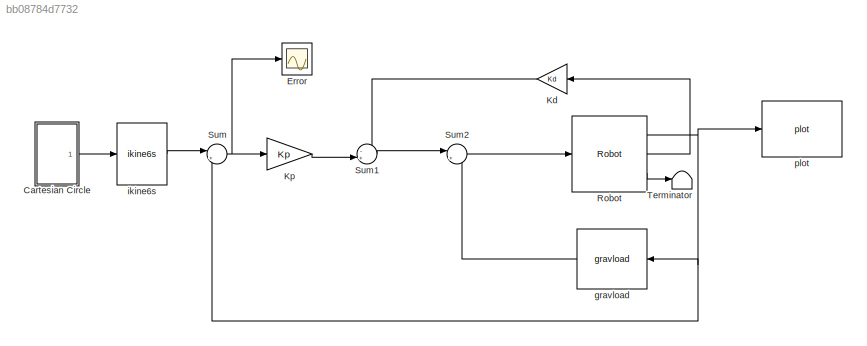
MODEL slx_bb08784d7732
KIND model
CONFIG AbsTol = auto
CONFIG EnableMultiTasking = off
CONFIG FixedStep = auto
CONFIG MaxStep = auto
CONFIG MinStep = auto
CONFIG RelTol = 1e-3
CONFIG SampleTimeConstraint = Unconstrained
CONFIG Solver = VariableStepAuto
CONFIG SolverName = VariableStepAuto
CONFIG StartTime = 0.0
CONFIG StopTime = 5
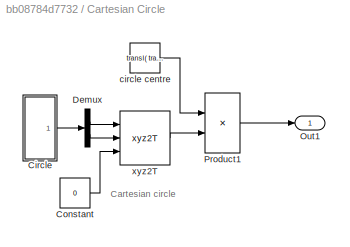
BLOCK [SubSystem] Cartesian Circle
  Ports = [0, 1]
  RequestExecContextInheritance = off
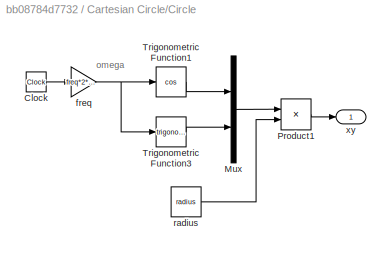
BLOCK [SubSystem] Cartesian Circle/Circle
  Ports = [0, 1]
  RequestExecContextInheritance = off
BLOCK [Clock] Cartesian Circle/Circle/Clock
BLOCK [Mux] Cartesian Circle/Circle/Mux
  DisplayOption = bar
  Inputs = 2
  Ports = [2, 1]
BLOCK [Product] Cartesian Circle/Circle/Product1
  Multiplication = Matrix(*)
  Ports = [2, 1]
  RndMeth = Zero
BLOCK [Trigonometry] Cartesian Circle/Circle/Trigonometric Function1
  Operator = cos
  Ports = [1, 1]
BLOCK [Trigonometry] Cartesian Circle/Circle/Trigonometric Function3
  Ports = [1, 1]
BLOCK [Gain] Cartesian Circle/Circle/freq
  Gain = freq*2*pi
BLOCK [Constant] Cartesian Circle/Circle/radius
  Value = radius
BLOCK [Outport] Cartesian Circle/Circle/xy
BLOCK [Constant] Cartesian Circle/Constant
  Value = 0
BLOCK [Demux] Cartesian Circle/Demux
  Outputs = 2
  Ports = [1, 2]
BLOCK [Outport] Cartesian Circle/Out1
BLOCK [Product] Cartesian Circle/Product1
  InputSameDT = on
  Multiplication = Matrix(*)
  OutDataTypeStr = Inherit: Same as first input
  Ports = [2, 1]
  RndMeth = Zero
  SaturateOnIntegerOverflow = on
BLOCK [Constant] Cartesian Circle/circle centre
  Value = transl( transl(p560.fkine(qn)) )
BLOCK [Reference] Cartesian Circle/xyz2T  REF=roblocks/Toolbox/xyz2T  (lib defined in mdl_2a292b13c81b, mdl_69400f8cfe22, +12 more)
  Ports = [3, 1]
  SourceBlock = roblocks/Toolbox/xyz2T
BLOCK [Scope] Error
  Floating = off
  NumInputPorts = 1
  Ports = [1]
  ScopeSpecificationString = Simulink.scopes.TimeScopeBlockCfg('CurrentConfiguration', extmgr.ConfigurationSet(extmgr.Configuration('Core','General UI',true),extmgr.Configuration('Core','Source UI',true),extmgr.Configuration('Sources','WiredSimulink',true),extmgr.Configuration('Visuals','Time Domain',true,'SerializedDisplays',{struct('MinYLimReal','-4.28136','MaxYLimReal','2.76927','YLabelReal','','MinYLimMag','0.00000','MaxY...<+1413ch>
BLOCK [Gain] Kd
  Gain = Kd
BLOCK [Gain] Kp
  Gain = Kp
BLOCK [Reference] Robot  REF=roblocks/Arm/Robot  (lib defined in mdl_2a292b13c81b, mdl_69400f8cfe22, +12 more)
  Ports = [1, 3]
  SourceBlock = roblocks/Arm/Robot
BLOCK [Sum] Sum
  Inputs = |+-
  Ports = [2, 1]
BLOCK [Sum] Sum1
  Inputs = -+|
  Ports = [2, 1]
BLOCK [Sum] Sum2
  Inputs = |++
  Ports = [2, 1]
BLOCK [Terminator] Terminator
BLOCK [Reference] gravload  REF=roblocks/Arm/gravload  (lib defined in mdl_2a292b13c81b, mdl_69400f8cfe22, +12 more)
  Ports = [1, 1]
  SourceBlock = roblocks/Arm/gravload
BLOCK [Reference] ikine6s  REF=roblocks/Arm/ikine6s  (lib defined in mdl_2a292b13c81b, mdl_69400f8cfe22, +12 more)
  Ports = [1, 1]
  SourceBlock = roblocks/Arm/ikine6s
BLOCK [Reference] plot  REF=roblocks/Arm/plot  (lib defined in mdl_2a292b13c81b, mdl_69400f8cfe22, +12 more)
  Ports = [1]
  SourceBlock = roblocks/Arm/plot
ANNOTATION Cartesian Circle: Cartesian circle
ANNOTATION Cartesian Circle/Circle: omega
LINE Cartesian Circle/Circle/Clock:1 -> Cartesian Circle/Circle/freq:1
LINE Cartesian Circle/Circle/Mux:1 -> Cartesian Circle/Circle/Product1:1
LINE Cartesian Circle/Circle/Product1:1 -> Cartesian Circle/Circle/xy:1
LINE Cartesian Circle/Circle/Trigonometric Function1:1 -> Cartesian Circle/Circle/Mux:1
LINE Cartesian Circle/Circle/Trigonometric Function3:1 -> Cartesian Circle/Circle/Mux:2
NET Cartesian Circle/Circle/freq:1 -> Cartesian Circle/Circle/Trigonometric Function1:1, Cartesian Circle/Circle/Trigonometric Function3:1
LINE Cartesian Circle/Circle/radius:1 -> Cartesian Circle/Circle/Product1:2
LINE Cartesian Circle/Circle:1 -> Cartesian Circle/Demux:1
LINE Cartesian Circle/Constant:1 -> Cartesian Circle/xyz2T:3
LINE Cartesian Circle/Demux:1 -> Cartesian Circle/xyz2T:1
LINE Cartesian Circle/Demux:2 -> Cartesian Circle/xyz2T:2
LINE Cartesian Circle/Product1:1 -> Cartesian Circle/Out1:1
LINE Cartesian Circle/circle centre:1 -> Cartesian Circle/Product1:1
LINE Cartesian Circle/xyz2T:1 -> Cartesian Circle/Product1:2
LINE Cartesian Circle:1 -> ikine6s:1
LINE Kd:1 -> Sum1:1
LINE Kp:1 -> Sum1:2
NET Robot:1 -> Sum:2, gravload:1, plot:1
LINE Robot:2 -> Kd:1
LINE Robot:3 -> Terminator:1
LINE Sum1:1 -> Sum2:1
LINE Sum2:1 -> Robot:1
NET Sum:1 -> Error:1, Kp:1
LINE gravload:1 -> Sum2:2
LINE ikine6s:1 -> Sum:1
note: NET lines group one-source signal fan-out (src -> all destinations, sorted); 1:1 wires keep LINE
